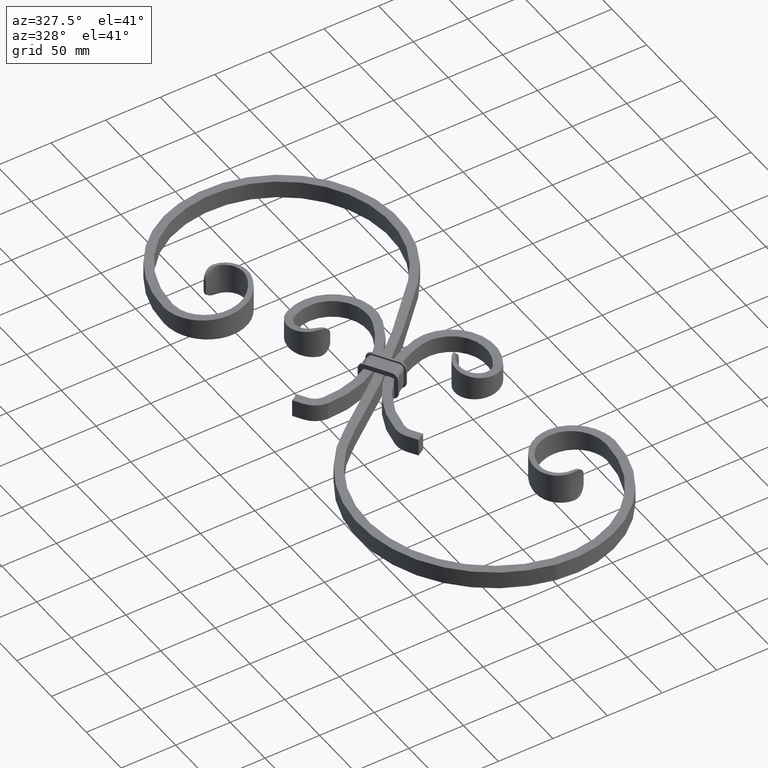
[diagram: clean part render]
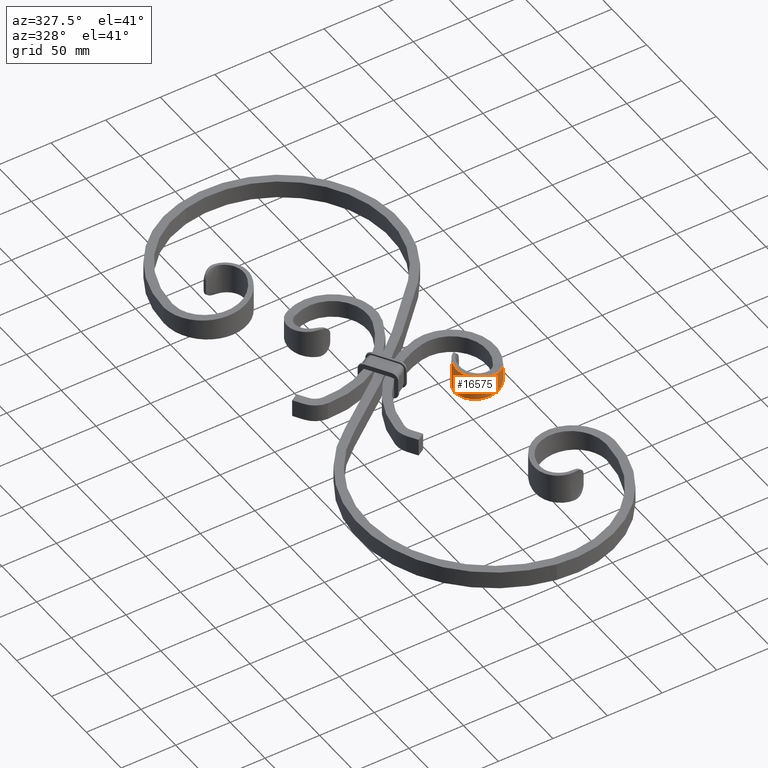
[diagram: same view with one face highlighted and labeled with its STEP entity id]
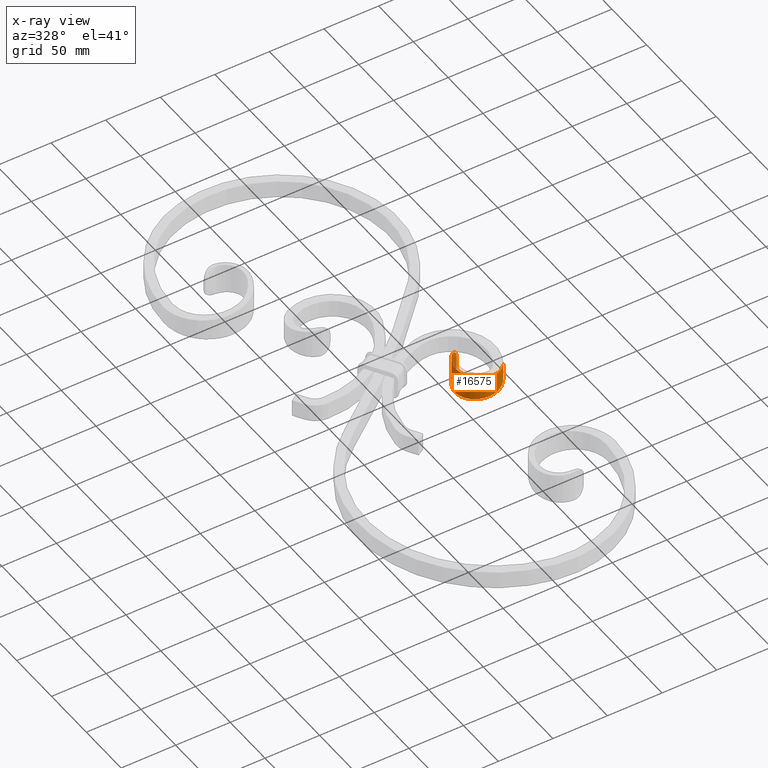
[diagram: x-ray of the same camera — body ghosted, the highlighted face saturated]
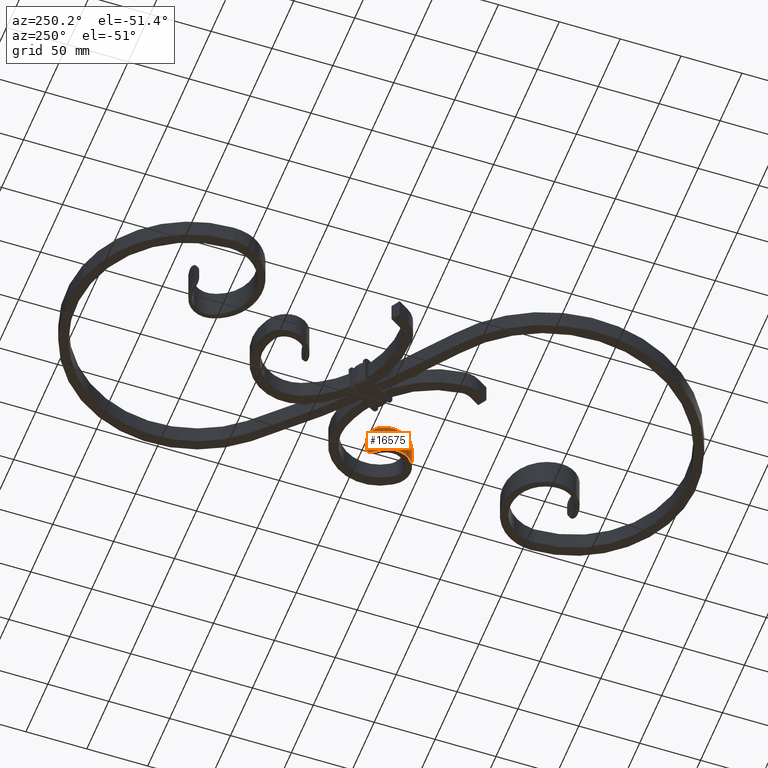
[diagram: same view with one face highlighted and labeled with its STEP entity id]
A machine part, auxiliary view. The second image highlights one B-rep face of the part: STEP entity #16575.
The next image is the same camera in x-ray: the body ghosted, the highlighted face saturated — about 0% of this face is hidden behind the body in this view.
A second angle (auxiliary view) of the same face is appended — the face is thin or edge-on in the first view.
In plain terms, the highlighted face is a freeform B-spline surface patch.
Its self-contained STEP definition (entity closure, byte-faithful):
#11 = CARTESIAN_POINT ( 'NONE',  ( 85.25162135269434316, -37.74374586833268097, 8.000000000000000000 ) ) ;
#18 = CARTESIAN_POINT ( 'NONE',  ( 58.97533092122236553, -9.108427941242586812, -11.38535210156664945 ) ) ;
#147 = CARTESIAN_POINT ( 'NONE',  ( 60.11590422983062609, -44.84642141961180073, -10.62732998272817753 ) ) ;
#157 = CARTESIAN_POINT ( 'NONE',  ( 57.75901145841449846, -9.802317034478042146, -12.46414812009178874 ) ) ;
#212 = CARTESIAN_POINT ( 'NONE',  ( 53.92568141648975200, -12.78731621603808755, -14.12707814043954357 ) ) ;
#232 = DIRECTION ( 'NONE',  ( 0.000000000000000000, 0.000000000000000000, 1.000000000000000000 ) ) ;
#268 = CARTESIAN_POINT ( 'NONE',  ( 49.27120460207557073, -20.97358690829104688, -13.25219223669010127 ) ) ;
#459 = CARTESIAN_POINT ( 'NONE',  ( 59.62847433008996489, -8.777016691816085014, 10.62818246930181232 ) ) ;
#584 = CARTESIAN_POINT ( 'NONE',  ( 58.96511084229092603, -9.113790350844052313, 11.39609964800235531 ) ) ;
#701 = CARTESIAN_POINT ( 'NONE',  ( 52.78168475463768061, -14.42056235946408194, 13.94306128670437595 ) ) ;
#725 = LINE ( 'NONE', #3024, #8320 ) ;
#947 = CARTESIAN_POINT ( 'NONE',  ( 50.85772046410218650, -17.21283265026741205, -13.62829485988901368 ) ) ;
#1210 = CARTESIAN_POINT ( 'NONE',  ( 48.50998135536070066, -25.65530746087440050, 12.81476042933345738 ) ) ;
#1236 = LINE ( 'NONE', #10619, #14804 ) ;
#1267 = CARTESIAN_POINT ( 'NONE',  ( 51.11687939972472350, -16.59850972165683913, 13.68973159547170759 ) ) ;
#1525 = CARTESIAN_POINT ( 'NONE',  ( 49.27120460207557073, -20.97358690829102912, 13.25219223669010127 ) ) ;
#1589 = CARTESIAN_POINT ( 'NONE',  ( 78.42393533818460583, -44.22152418888636305, -8.877394754115977449 ) ) ;
#1772 = CARTESIAN_POINT ( 'NONE',  ( 69.34884499363136001, -46.73651424371993102, -9.752374439105020443 ) ) ;
#1790 = VERTEX_POINT ( 'NONE', #17186 ) ;
#1861 = CARTESIAN_POINT ( 'NONE',  ( 84.28015759486305569, -38.98729658234631046, 8.146177225833923785 ) ) ;
#2130 = CARTESIAN_POINT ( 'NONE',  ( 55.41047978614572855, -11.57103678370824085, 13.69966387827996890 ) ) ;
#2176 = CARTESIAN_POINT ( 'NONE',  ( 52.78168475463770903, -14.42056235946406417, -13.94306128670437772 ) ) ;
#2185 = CARTESIAN_POINT ( 'NONE',  ( 54.64391592996987868, -12.29320357323607382, 13.89791431430847091 ) ) ;
#2566 = CARTESIAN_POINT ( 'NONE',  ( 61.26553129360124217, -8.017457414865697629, -7.581144606846484280 ) ) ;
#2613 = EDGE_CURVE ( 'NONE', #7809, #1790, #11508, .T. ) ;
#2788 = ORIENTED_EDGE ( 'NONE', *, *, #8031, .T. ) ;
#2825 = CARTESIAN_POINT ( 'NONE',  ( 54.65254632881366348, -12.28466912853065551, -13.89618648091243536 ) ) ;
#3009 = CARTESIAN_POINT ( 'NONE',  ( 52.74686215721163052, -38.97000055740390678, -11.50228419507442190 ) ) ;
#3024 = CARTESIAN_POINT ( 'NONE',  ( 85.25162135269434316, -37.74374586833268097, 8.000000000000000000 ) ) ;
#3052 = CARTESIAN_POINT ( 'NONE',  ( 61.83023904450435282, -7.766373400560381057, -4.104769753307802915 ) ) ;
#3067 = CARTESIAN_POINT ( 'NONE',  ( 82.32624814488715970, -41.48845575791840190, -8.440184141301138254 ) ) ;
#3309 = CARTESIAN_POINT ( 'NONE',  ( 61.83023904450435282, -7.766373400560378393, 4.104769753307799363 ) ) ;
#3362 = DIRECTION ( 'NONE',  ( 2.312964634635742957E-16, -1.156482317317871478E-16, -1.000000000000000000 ) ) ;
#3440 = CARTESIAN_POINT ( 'NONE',  ( 61.83023904450429598, -7.766373400560397933, 4.462919369434120043 ) ) ;
#3588 = CARTESIAN_POINT ( 'NONE',  ( 85.25162135269434316, -37.74374586833268097, 8.000000000000000000 ) ) ;
#3607 = CARTESIAN_POINT ( 'NONE',  ( 56.70595433049101075, -10.50655843150868129, 13.15886128410215150 ) ) ;
#3916 = CARTESIAN_POINT ( 'NONE',  ( 69.34884499363136001, -46.73651424371993102, 9.752374439105020443 ) ) ;
#4030 = CARTESIAN_POINT ( 'NONE',  ( 60.74495047465148900, -8.251391636419057818, -8.881171799913264664 ) ) ;
#4031 = CARTESIAN_POINT ( 'NONE',  ( 56.08793203074951350, -42.33815581459637656, 11.06485381014406144 ) ) ;
#4156 = CARTESIAN_POINT ( 'NONE',  ( 61.83023904450433861, -7.766373400560375728, 15.00000000000000000 ) ) ;
#4540 = CARTESIAN_POINT ( 'NONE',  ( 85.25162135269434316, -37.74374586833268097, -8.000000000000000000 ) ) ;
#4601 = CARTESIAN_POINT ( 'NONE',  ( 74.04142243502552390, -46.01646737970171586, 9.314967652474249959 ) ) ;
#4722 = CARTESIAN_POINT ( 'NONE',  ( 50.29651628894315252, -34.90643014090457541, 11.93980569443440132 ) ) ;
#5127 = CARTESIAN_POINT ( 'NONE',  ( 54.39629874216010563, -12.54378725777471715, 13.94038512334006263 ) ) ;
#5366 = CARTESIAN_POINT ( 'NONE',  ( 49.27120460207557073, -20.97358690829104688, -13.25219223669010127 ) ) ;
#5367 = CARTESIAN_POINT ( 'NONE',  ( 49.27120460207557073, -20.97358690829102912, 13.25219223669010127 ) ) ;
#5590 = EDGE_CURVE ( 'NONE', #9508, #7809, #12150, .T. ) ;
#6019 = CARTESIAN_POINT ( 'NONE',  ( 56.08793203074951350, -42.33815581459637656, 11.06485381014406144 ) ) ;
#6149 = CARTESIAN_POINT ( 'NONE',  ( 50.29651628894315962, -34.90643014090456830, -11.93980569443440132 ) ) ;
#6568 = CARTESIAN_POINT ( 'NONE',  ( 58.24920770900855871, -9.507979159700159499, 12.07283802214394086 ) ) ;
#6625 = CARTESIAN_POINT ( 'NONE',  ( 52.22670080029438822, -15.14766894952796505, -13.85811859204631169 ) ) ;
#6687 = CARTESIAN_POINT ( 'NONE',  ( 48.50998135536070777, -25.65530746087438629, -12.81476042933345738 ) ) ;
#6885 = CARTESIAN_POINT ( 'NONE',  ( 52.78168475463768061, -14.42056235946408194, 13.94306128670437595 ) ) ;
#7031 = CARTESIAN_POINT ( 'NONE',  ( 85.25162135269434316, -37.74374586833268097, -8.000000000000000000 ) ) ;
#7131 = CARTESIAN_POINT ( 'NONE',  ( 60.39420340080097560, -8.403532148155958836, 14.85448211050007394 ) ) ;
#7397 = CARTESIAN_POINT ( 'NONE',  ( 84.28015759486305569, -38.98729658234631046, 8.146177225833923785 ) ) ;
#7401 = CARTESIAN_POINT ( 'NONE',  ( 55.15872063000028191, -11.79961864329505872, -13.77549031027319515 ) ) ;
#7423 = FACE_OUTER_BOUND ( 'NONE', #13297, .T. ) ;
#7461 = CARTESIAN_POINT ( 'NONE',  ( 52.78168475463770903, -14.42056235946406417, -13.94306128670437772 ) ) ;
#7514 = CARTESIAN_POINT ( 'NONE',  ( 82.32624814488715970, -41.48845575791840190, 8.440184141301138254 ) ) ;
#7809 = VERTEX_POINT ( 'NONE', #8117 ) ;
#8031 = EDGE_CURVE ( 'NONE', #19036, #9508, #725, .T. ) ;
#8117 = CARTESIAN_POINT ( 'NONE',  ( 52.78168475463768061, -14.42056235946408194, 13.94306128670437595 ) ) ;
#8165 = ORIENTED_EDGE ( 'NONE', *, *, #13131, .T. ) ;
#8232 = CARTESIAN_POINT ( 'NONE',  ( 82.32624814488715970, -41.48845575791840190, -8.440184141301138254 ) ) ;
#8320 = VECTOR ( 'NONE', #232, 1000.000000000000000 ) ;
#8353 = CARTESIAN_POINT ( 'NONE',  ( 52.22670080029436690, -15.14766894952798282, 13.85811859204630991 ) ) ;
#8488 = CARTESIAN_POINT ( 'NONE',  ( 60.11590422983062609, -44.84642141961181494, 10.62732998272817753 ) ) ;
#8637 = B_SPLINE_CURVE_WITH_KNOTS ( 'NONE', 3,
 ( #12444, #6625, #947, #5366, #6687, #11145, #16921, #16986, #11087, #17046, #18396, #18453, #9645, #9695, #8232, #15655, #11026 ),
 .UNSPECIFIED., .F., .F.,
 ( 4, 1, 1, 1, 1, 1, 1, 1, 1, 1, 1, 1, 1, 1, 4 ),
 ( 0.1618106564905695544, 0.2003610225468134554, 0.2658247086146767191, 0.3306318763820655926, 0.3947755433901599109, 0.4582632969167447223, 0.5210878898059129183, 0.5832572537558253778, 0.6447638549387615381, 0.7056160050587322319, 0.7658058610086561080, 0.8253421579339980108, 0.8842167167056957933, 0.9424337379173234330, 1.000000000000000000 ),
 .UNSPECIFIED. ) ;
#8934 = CARTESIAN_POINT ( 'NONE',  ( 78.42393533818460583, -44.22152418888636305, 8.877394754115977449 ) ) ;
#9007 = CARTESIAN_POINT ( 'NONE',  ( 59.20132593317767800, -8.991517921624318177, -11.14052682779732528 ) ) ;
#9054 = CARTESIAN_POINT ( 'NONE',  ( 60.11590422983062609, -44.84642141961181494, 10.62732998272817753 ) ) ;
#9174 = CARTESIAN_POINT ( 'NONE',  ( 60.41044613184316603, -8.403103966410164105, 9.502026168930104433 ) ) ;
#9508 = VERTEX_POINT ( 'NONE', #17516 ) ;
#9645 = CARTESIAN_POINT ( 'NONE',  ( 74.04142243502552390, -46.01646737970171586, -9.314967652474249959 ) ) ;
#9695 = CARTESIAN_POINT ( 'NONE',  ( 78.42393533818460583, -44.22152418888636305, -8.877394754115977449 ) ) ;
#9945 = CARTESIAN_POINT ( 'NONE',  ( 61.55579621928882261, -7.888197684301406554, -6.560731882288284744 ) ) ;
#10209 = CARTESIAN_POINT ( 'NONE',  ( 58.26189766084640809, -9.500646100148280482, -12.06201326645761718 ) ) ;
#10335 = CARTESIAN_POINT ( 'NONE',  ( 51.11687939972473060, -16.59850972165682492, -13.68973159547170759 ) ) ;
#10344 = CARTESIAN_POINT ( 'NONE',  ( 55.41892209672003133, -11.56346038672344534, -13.69700203935184923 ) ) ;
#10346 = VERTEX_POINT ( 'NONE', #3052 ) ;
#10456 = CARTESIAN_POINT ( 'NONE',  ( 61.83023904450434571, -7.766373400560379281, -15.00000000000000000 ) ) ;
#10576 = CARTESIAN_POINT ( 'NONE',  ( 57.53652004182424662, -9.671465822375022725, -14.56490430434970307 ) ) ;
#10619 = CARTESIAN_POINT ( 'NONE',  ( 61.83023904450433861, -7.766373400560375728, 15.00000000000000000 ) ) ;
#10870 = CARTESIAN_POINT ( 'NONE',  ( 61.81256118177545034, -7.774216476814293841, 4.821374031114490144 ) ) ;
#10912 = CARTESIAN_POINT ( 'NONE',  ( 55.15215359528547623, -11.80565519128640517, 13.77737654818661817 ) ) ;
#10978 = CARTESIAN_POINT ( 'NONE',  ( 53.21378720407371077, -13.85444772478163600, 14.00919643554282246 ) ) ;
#11026 = CARTESIAN_POINT ( 'NONE',  ( 85.25162135269434316, -37.74374586833268097, -8.000000000000000000 ) ) ;
#11087 = CARTESIAN_POINT ( 'NONE',  ( 56.08793203074951350, -42.33815581459638366, -11.06485381014406144 ) ) ;
#11145 = CARTESIAN_POINT ( 'NONE',  ( 48.84863398383497213, -30.38865717543475498, -12.37723943242670721 ) ) ;
#11214 = CARTESIAN_POINT ( 'NONE',  ( 78.42393533818460583, -44.22152418888636305, 8.877394754115977449 ) ) ;
#11274 = CARTESIAN_POINT ( 'NONE',  ( 50.85772046410217939, -17.21283265026742981, 13.62829485988901368 ) ) ;
#11464 = CARTESIAN_POINT ( 'NONE',  ( 61.76063560508874417, -7.797228232164231443, -5.524403576392646897 ) ) ;
#11508 = B_SPLINE_CURVE_WITH_KNOTS ( 'NONE', 3,
 ( #701, #10978, #13940, #5127, #2185, #10912, #2130, #12396, #3607, #13874, #15354, #6568, #16804, #584, #12275, #459, #12088, #9174, #13579, #17924, #13523, #18169, #15049, #10870, #3440, #3309 ),
 .UNSPECIFIED., .F., .F.,
 ( 4, 2, 2, 2, 2, 2, 2, 2, 2, 2, 2, 2, 4 ),
 ( 0.000000000000000000, 0.002119924405004221159, 0.003179886607506340630, 0.004239848810008460533, 0.006359773215012702943, 0.007419735417514815475, 0.008479697620016926271, 0.009539659822519036200, 0.01059962202502114613, 0.01271954643002537119, 0.01483947083502959625, 0.01589943303753171139, 0.01695939524003382479 ),
 .UNSPECIFIED. ) ;
#11586 = CARTESIAN_POINT ( 'NONE',  ( 60.41800631507223329, -8.399595478014685312, -9.489486906712757630 ) ) ;
#11769 = CARTESIAN_POINT ( 'NONE',  ( 48.84863398383497213, -30.38865717543475498, -12.37723943242670721 ) ) ;
#11775 = CARTESIAN_POINT ( 'NONE',  ( 57.49863735195693693, -9.967644805556114207, -12.65094585543413963 ) ) ;
#11828 = ORIENTED_EDGE ( 'NONE', *, *, #2613, .T. ) ;
#11833 = CARTESIAN_POINT ( 'NONE',  ( 48.84863398383497213, -30.38865717543474787, 12.37723943242670721 ) ) ;
#12088 = CARTESIAN_POINT ( 'NONE',  ( 59.83496880117239414, -8.676839262950931442, 10.35360598427330814 ) ) ;
#12150 = B_SPLINE_CURVE_WITH_KNOTS ( 'NONE', 3,
 ( #3588, #1861, #14369, #11214, #18779, #3916, #18519, #8488, #4031, #14185, #15656, #12831, #1210, #5367, #11274, #8353, #6885 ),
 .UNSPECIFIED., .F., .F.,
 ( 4, 1, 1, 1, 1, 1, 1, 1, 1, 1, 1, 1, 1, 1, 4 ),
 ( 0.000000000000000000, 0.05756626208267656697, 0.1157832832943042067, 0.1746578420660019892, 0.2341941389913438643, 0.2943839949412677681, 0.3552361450612384619, 0.4167427462441746222, 0.4789121101940870262, 0.5417367030832553887, 0.6052244566098401446, 0.6693681236179344074, 0.7341752913853232254, 0.7996389774531865724, 0.8381893435094300848 ),
 .UNSPECIFIED. ) ;
#12275 = CARTESIAN_POINT ( 'NONE',  ( 59.19264114671533150, -8.995953322068208635, 11.15038659939793853 ) ) ;
#12396 = CARTESIAN_POINT ( 'NONE',  ( 56.18509646289132320, -10.90494836695392600, 13.41595767049367893 ) ) ;
#12444 = CARTESIAN_POINT ( 'NONE',  ( 52.78168475463770903, -14.42056235946406417, -13.94306128670437772 ) ) ;
#12763 = CARTESIAN_POINT ( 'NONE',  ( 61.83023904450435282, -7.766373400560381057, -4.104769753307802915 ) ) ;
#12830 = CARTESIAN_POINT ( 'NONE',  ( 61.14625093708347947, -8.070746902588023630, -7.914170483509097132 ) ) ;
#12831 = CARTESIAN_POINT ( 'NONE',  ( 48.84863398383497213, -30.38865717543474787, 12.37723943242670721 ) ) ;
#13059 = VERTEX_POINT ( 'NONE', #2176 ) ;
#13131 = EDGE_CURVE ( 'NONE', #13059, #19036, #8637, .T. ) ;
#13150 = CARTESIAN_POINT ( 'NONE',  ( 59.84054267052821530, -8.674145197925129835, -10.34601753265970281 ) ) ;
#13168 = B_SPLINE_CURVE_WITH_KNOTS ( 'NONE', 3,
 ( #12763, #14441, #11464, #9945, #15713, #2566, #12830, #4030, #11586, #13150, #13281, #9007, #18, #17555, #10209, #157, #11775, #16158, #17495, #10344, #7401, #2825, #14695, #14817, #18971, #7461 ),
 .UNSPECIFIED., .F., .F.,
 ( 4, 2, 2, 2, 2, 2, 2, 2, 2, 2, 2, 2, 4 ),
 ( 0.000000000000000000, 0.002118468433448656395, 0.003177702650172982857, 0.004236936866897310187, 0.006355405300345963113, 0.007414639517070286540, 0.008473873733794609966, 0.009533107950518933393, 0.01059234216724325855, 0.01271081060069190714, 0.01377004481741623231, 0.01482927903414055747, 0.01694774746758921646 ),
 .UNSPECIFIED. ) ;
#13264 = EDGE_CURVE ( 'NONE', #10346, #13059, #13168, .T. ) ;
#13273 = CARTESIAN_POINT ( 'NONE',  ( 56.08793203074951350, -42.33815581459638366, -11.06485381014406144 ) ) ;
#13281 = CARTESIAN_POINT ( 'NONE',  ( 59.63333783712525360, -8.774648553574630583, -10.62179163448795549 ) ) ;
#13297 = EDGE_LOOP ( 'NONE', ( #14223, #15679, #8165, #2788, #18313, #11828 ) ) ;
#13336 = CARTESIAN_POINT ( 'NONE',  ( 64.62212311740800885, -46.33096464918968849, -10.18990459948459026 ) ) ;
#13459 = CARTESIAN_POINT ( 'NONE',  ( 48.50998135536070066, -25.65530746087440050, 12.81476042933345738 ) ) ;
#13523 = CARTESIAN_POINT ( 'NONE',  ( 61.48454758598231251, -7.919840532090319130, 6.917300800168883157 ) ) ;
#13527 = CARTESIAN_POINT ( 'NONE',  ( 69.34884499363136001, -46.73651424371993102, 9.752374439105020443 ) ) ;
#13579 = CARTESIAN_POINT ( 'NONE',  ( 60.73957324330115171, -8.253822209412733812, 8.893067265054746429 ) ) ;
#13874 = CARTESIAN_POINT ( 'NONE',  ( 57.48666330153964310, -9.975424575695623020, 12.65925198706482746 ) ) ;
#13940 = CARTESIAN_POINT ( 'NONE',  ( 53.67205376896391300, -13.31486485902792261, 14.01984579453589497 ) ) ;
#14185 = CARTESIAN_POINT ( 'NONE',  ( 52.74686215721163052, -38.97000055740390678, 11.50228419507442190 ) ) ;
#14223 = ORIENTED_EDGE ( 'NONE', *, *, #14502, .T. ) ;
#14369 = CARTESIAN_POINT ( 'NONE',  ( 82.32624814488715970, -41.48845575791840190, 8.440184141301138254 ) ) ;
#14431 = CARTESIAN_POINT ( 'NONE',  ( 57.53652004182423241, -9.671465822375022725, 14.56490430434970307 ) ) ;
#14441 = CARTESIAN_POINT ( 'NONE',  ( 61.83023904450431729, -7.766373400560379281, -4.821058691024462384 ) ) ;
#14502 = EDGE_CURVE ( 'NONE', #1790, #10346, #1236, .T. ) ;
#14695 = CARTESIAN_POINT ( 'NONE',  ( 54.40504194845537000, -12.53477722275922623, -13.93907476947657109 ) ) ;
#14804 = VECTOR ( 'NONE', #3362, 1000.000000000000000 ) ;
#14808 = CARTESIAN_POINT ( 'NONE',  ( 52.74686215721163052, -38.97000055740390678, 11.50228419507442190 ) ) ;
#14817 = CARTESIAN_POINT ( 'NONE',  ( 53.67893563785148814, -13.30695567901015330, -14.01977554748699539 ) ) ;
#14997 = CARTESIAN_POINT ( 'NONE',  ( 60.39420340080098271, -8.403532148155960613, -14.85448211050007394 ) ) ;
#15049 = CARTESIAN_POINT ( 'NONE',  ( 61.74256136476871859, -7.805276761616431358, 5.531127714734724421 ) ) ;
#15167 = B_SPLINE_SURFACE_WITH_KNOTS ( 'NONE', 1, 3, ( 
 ( #4156, #7131, #14431, #15897, #1267, #1525, #13459, #11833, #4722, #14808, #6019, #9054, #16277, #13527, #4601, #8934, #7514, #7397, #11 ),
 ( #10456, #14997, #10576, #212, #10335, #268, #16395, #11769, #6149, #3009, #13273, #147, #13336, #1772, #16153, #1589, #3067, #17615, #4540 ) ),
 .UNSPECIFIED., .F., .F., .F.,
 ( 2, 2 ),
 ( 4, 1, 1, 1, 1, 1, 1, 1, 1, 1, 1, 1, 1, 1, 1, 1, 4 ),
 ( 0.000000000000000000, 1.000000000000000000 ),
 ( 0.000000000000000000, 0.06745469263291228867, 0.1342335432042952581, 0.2003610225468134554, 0.2658247086146767191, 0.3306318763820655926, 0.3947755433901599109, 0.4582632969167446668, 0.5210878898059129183, 0.5832572537558253778, 0.6447638549387615381, 0.7056160050587322319, 0.7658058610086561080, 0.8253421579339980108, 0.8842167167056957933, 0.9424337379173234330, 1.000000000000000000 ),
 .UNSPECIFIED. ) ;
#15354 = CARTESIAN_POINT ( 'NONE',  ( 57.74676239833137004, -9.809958575782575352, 12.47323145245622555 ) ) ;
#15655 = CARTESIAN_POINT ( 'NONE',  ( 84.28015759486305569, -38.98729658234631046, -8.146177225833923785 ) ) ;
#15656 = CARTESIAN_POINT ( 'NONE',  ( 50.29651628894315252, -34.90643014090457541, 11.93980569443440132 ) ) ;
#15679 = ORIENTED_EDGE ( 'NONE', *, *, #13264, .T. ) ;
#15713 = CARTESIAN_POINT ( 'NONE',  ( 61.47063413410202060, -7.926033192652592874, -6.903033105315898865 ) ) ;
#15897 = CARTESIAN_POINT ( 'NONE',  ( 53.92568141648974489, -12.78731621603808577, 14.12707814043954357 ) ) ;
#16153 = CARTESIAN_POINT ( 'NONE',  ( 74.04142243502552390, -46.01646737970171586, -9.314967652474249959 ) ) ;
#16158 = CARTESIAN_POINT ( 'NONE',  ( 56.72022829474172312, -10.49614098935712292, -13.15096736049044956 ) ) ;
#16277 = CARTESIAN_POINT ( 'NONE',  ( 64.62212311740800885, -46.33096464918968849, 10.18990459948459026 ) ) ;
#16395 = CARTESIAN_POINT ( 'NONE',  ( 48.50998135536070777, -25.65530746087438629, -12.81476042933345738 ) ) ;
#16575 = ADVANCED_FACE ( 'NONE', ( #7423 ), #15167, .T. ) ;
#16804 = CARTESIAN_POINT ( 'NONE',  ( 58.49339869761794120, -9.369808730750632364, 11.85732695990920504 ) ) ;
#16921 = CARTESIAN_POINT ( 'NONE',  ( 50.29651628894315962, -34.90643014090456830, -11.93980569443440132 ) ) ;
#16986 = CARTESIAN_POINT ( 'NONE',  ( 52.74686215721163052, -38.97000055740390678, -11.50228419507442190 ) ) ;
#17046 = CARTESIAN_POINT ( 'NONE',  ( 60.11590422983062609, -44.84642141961180073, -10.62732998272817753 ) ) ;
#17186 = CARTESIAN_POINT ( 'NONE',  ( 61.83023904450435282, -7.766373400560378393, 4.104769753307799363 ) ) ;
#17495 = CARTESIAN_POINT ( 'NONE',  ( 56.19841220546861393, -10.89415082628642750, -13.41019486040262620 ) ) ;
#17516 = CARTESIAN_POINT ( 'NONE',  ( 85.25162135269434316, -37.74374586833268097, 8.000000000000000000 ) ) ;
#17555 = CARTESIAN_POINT ( 'NONE',  ( 58.50562109542030242, -9.362999261777057214, -11.84609567241268913 ) ) ;
#17615 = CARTESIAN_POINT ( 'NONE',  ( 84.28015759486305569, -38.98729658234631046, -8.146177225833923785 ) ) ;
#17924 = CARTESIAN_POINT ( 'NONE',  ( 61.28075194713308349, -8.010191561549362405, 7.591120363655799785 ) ) ;
#18169 = CARTESIAN_POINT ( 'NONE',  ( 61.69049029704202525, -7.828379258527225382, 5.881184079803410292 ) ) ;
#18313 = ORIENTED_EDGE ( 'NONE', *, *, #5590, .T. ) ;
#18396 = CARTESIAN_POINT ( 'NONE',  ( 64.62212311740800885, -46.33096464918968849, -10.18990459948459026 ) ) ;
#18453 = CARTESIAN_POINT ( 'NONE',  ( 69.34884499363136001, -46.73651424371993102, -9.752374439105020443 ) ) ;
#18519 = CARTESIAN_POINT ( 'NONE',  ( 64.62212311740800885, -46.33096464918968849, 10.18990459948459026 ) ) ;
#18779 = CARTESIAN_POINT ( 'NONE',  ( 74.04142243502552390, -46.01646737970171586, 9.314967652474249959 ) ) ;
#18971 = CARTESIAN_POINT ( 'NONE',  ( 53.21417120947242552, -13.85394462400937421, -14.00925520923000711 ) ) ;
#19036 = VERTEX_POINT ( 'NONE', #7031 ) ;